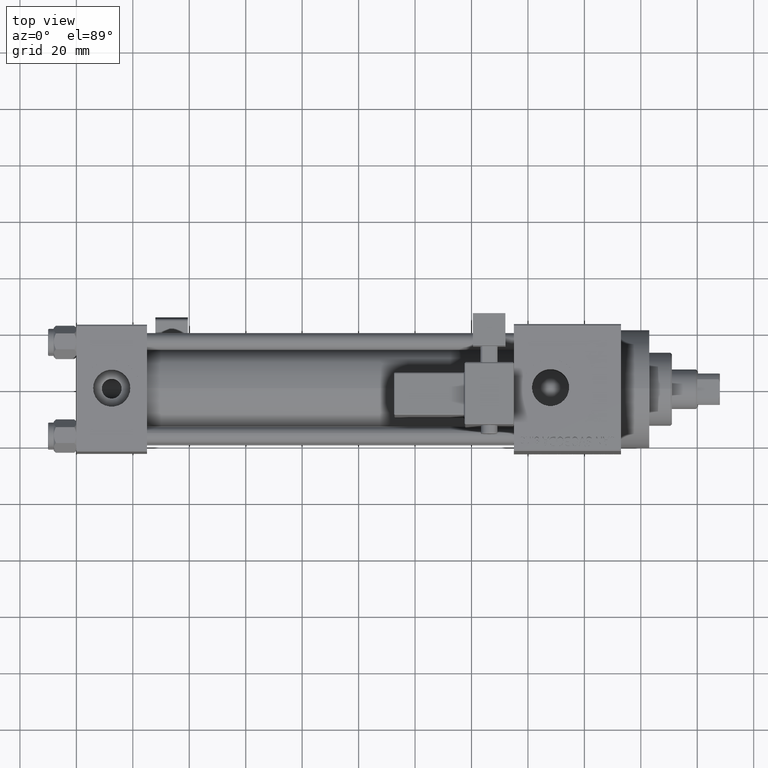
[diagram: clean part render]
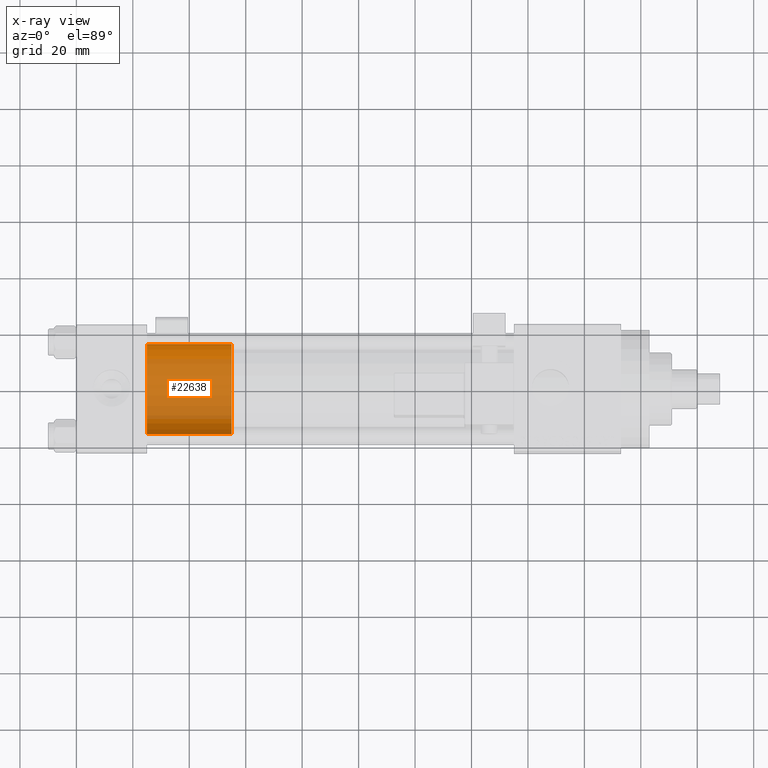
[diagram: x-ray — body ghosted, one internal face saturated and labeled with its STEP entity id]
A machine part, top view, then the same camera in x-ray: the body is ghosted and one INTERNAL B-rep face — a face not visible from any outside direction — is saturated and labeled: STEP entity #22638.
In plain terms, the highlighted cylindrical surface (partial cylindrical patch) has radius 16 mm, axis along (-1, 0, 0).
Its self-contained STEP definition (entity closure, byte-faithful):
#1355 = ORIENTED_EDGE ( 'NONE', *, *, #24223, .F. ) ;
#2496 = CARTESIAN_POINT ( 'NONE',  ( 16.00000000000000000, 1.959434878635765131E-15, 30.00000000000000000 ) ) ;
#3216 = CARTESIAN_POINT ( 'NONE',  ( 16.00000000000000000, 1.959434878635765131E-15, 0.000000000000000000 ) ) ;
#4957 = EDGE_CURVE ( 'NONE', #29979, #34347, #9468, .T. ) ;
#6716 = ORIENTED_EDGE ( 'NONE', *, *, #25271, .F. ) ;
#8452 = DIRECTION ( 'NONE',  ( 0.000000000000000000, 0.000000000000000000, 1.000000000000000000 ) ) ;
#8733 = DIRECTION ( 'NONE',  ( -0.000000000000000000, -0.000000000000000000, -1.000000000000000000 ) ) ;
#9468 = LINE ( 'NONE', #20949, #23846 ) ;
#10086 = CIRCLE ( 'NONE', #49191, 16.00000000000000000 ) ;
#10381 = DIRECTION ( 'NONE',  ( -0.000000000000000000, -0.000000000000000000, -1.000000000000000000 ) ) ;
#12502 = ORIENTED_EDGE ( 'NONE', *, *, #4957, .T. ) ;
#13333 = VECTOR ( 'NONE', #39336, 1000.000000000000000 ) ;
#13635 = CARTESIAN_POINT ( 'NONE',  ( 0.000000000000000000, 0.000000000000000000, 30.00000000000000000 ) ) ;
#13795 = CIRCLE ( 'NONE', #32907, 16.00000000000000000 ) ;
#13917 = VERTEX_POINT ( 'NONE', #22391 ) ;
#14375 = DIRECTION ( 'NONE',  ( -1.000000000000000000, 0.000000000000000000, 0.000000000000000000 ) ) ;
#14957 = EDGE_LOOP ( 'NONE', ( #1355, #12502, #46018, #6716 ) ) ;
#16944 = DIRECTION ( 'NONE',  ( 1.000000000000000000, 0.000000000000000000, 0.000000000000000000 ) ) ;
#20949 = CARTESIAN_POINT ( 'NONE',  ( 16.00000000000000000, 1.959434878635765131E-15, 30.00000000000000000 ) ) ;
#21126 = LINE ( 'NONE', #28849, #13333 ) ;
#22391 = CARTESIAN_POINT ( 'NONE',  ( -16.00000000000000000, 0.000000000000000000, 0.000000000000000000 ) ) ;
#22638 = ADVANCED_FACE ( 'NONE', ( #40556 ), #47844, .T. ) ;
#23697 = DIRECTION ( 'NONE',  ( 1.000000000000000000, 0.000000000000000000, 0.000000000000000000 ) ) ;
#23846 = VECTOR ( 'NONE', #8733, 1000.000000000000000 ) ;
#24223 = EDGE_CURVE ( 'NONE', #29979, #48423, #10086, .T. ) ;
#25271 = EDGE_CURVE ( 'NONE', #48423, #13917, #21126, .T. ) ;
#28025 = CARTESIAN_POINT ( 'NONE',  ( -16.00000000000000000, 0.000000000000000000, 30.00000000000000000 ) ) ;
#28502 = AXIS2_PLACEMENT_3D ( 'NONE', #13635, #10381, #14375 ) ;
#28849 = CARTESIAN_POINT ( 'NONE',  ( -16.00000000000000000, 0.000000000000000000, 30.00000000000000000 ) ) ;
#28898 = CARTESIAN_POINT ( 'NONE',  ( 0.000000000000000000, 0.000000000000000000, 30.00000000000000000 ) ) ;
#29979 = VERTEX_POINT ( 'NONE', #2496 ) ;
#32907 = AXIS2_PLACEMENT_3D ( 'NONE', #42642, #8452, #23697 ) ;
#34347 = VERTEX_POINT ( 'NONE', #3216 ) ;
#34505 = EDGE_CURVE ( 'NONE', #34347, #13917, #13795, .T. ) ;
#39336 = DIRECTION ( 'NONE',  ( -0.000000000000000000, -0.000000000000000000, -1.000000000000000000 ) ) ;
#39634 = DIRECTION ( 'NONE',  ( 0.000000000000000000, 0.000000000000000000, 1.000000000000000000 ) ) ;
#40556 = FACE_OUTER_BOUND ( 'NONE', #14957, .T. ) ;
#42642 = CARTESIAN_POINT ( 'NONE',  ( 0.000000000000000000, 0.000000000000000000, 0.000000000000000000 ) ) ;
#46018 = ORIENTED_EDGE ( 'NONE', *, *, #34505, .T. ) ;
#47844 = CYLINDRICAL_SURFACE ( 'NONE', #28502, 16.00000000000000000 ) ;
#48423 = VERTEX_POINT ( 'NONE', #28025 ) ;
#49191 = AXIS2_PLACEMENT_3D ( 'NONE', #28898, #39634, #16944 ) ;